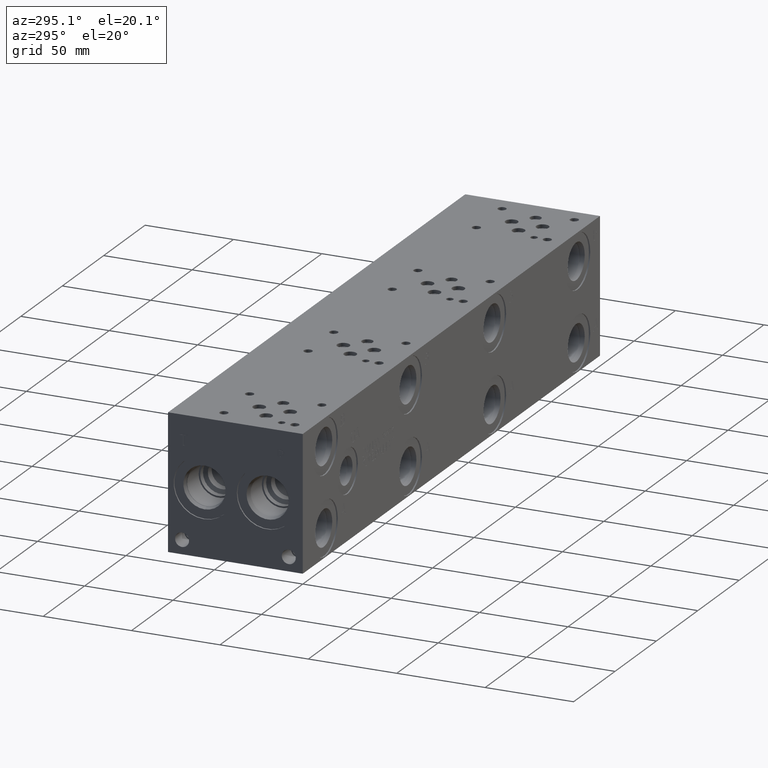
[diagram: clean part render]
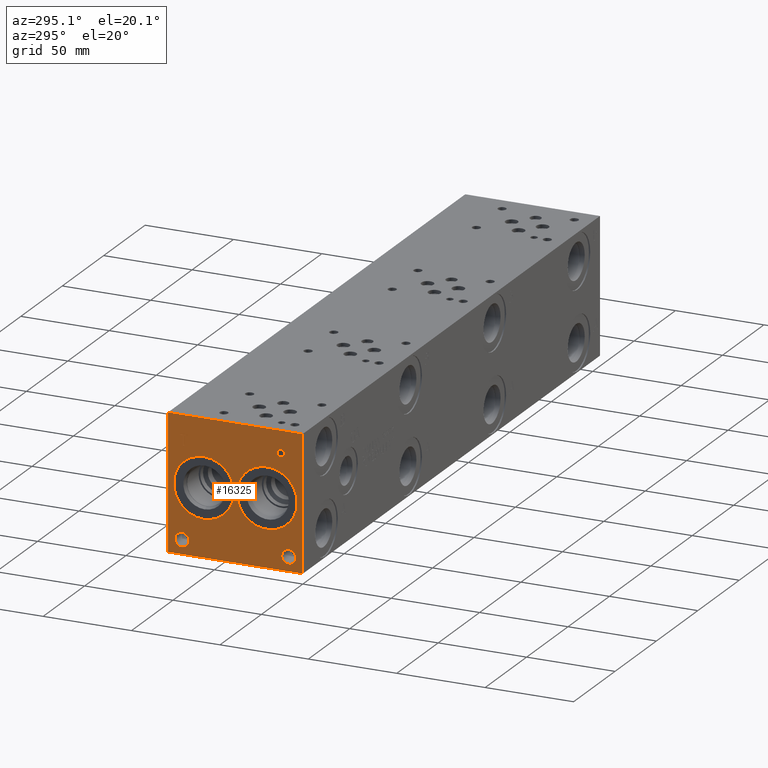
[diagram: same view with one face highlighted and labeled with its STEP entity id]
A machine part, auxiliary view. The second image highlights one B-rep face of the part: STEP entity #16325.
In plain terms, the highlighted planar face has unit normal (-1, 0, 0).
Its self-contained STEP definition (entity closure, byte-faithful):
#272=CIRCLE('',#17048,17.0688);
#273=CIRCLE('',#17049,17.0688);
#274=CIRCLE('',#17050,17.0688);
#275=CIRCLE('',#17051,17.0688);
#276=CIRCLE('',#17052,3.9624);
#277=CIRCLE('',#17053,3.9624);
#278=CIRCLE('',#17054,3.9624);
#279=CIRCLE('',#17055,3.9624);
#810=FACE_BOUND('',#2964,.T.);
#811=FACE_BOUND('',#2965,.T.);
#812=FACE_BOUND('',#2966,.T.);
#813=FACE_BOUND('',#2967,.T.);
#814=FACE_BOUND('',#2968,.T.);
#815=FACE_BOUND('',#2969,.T.);
#1264=B_SPLINE_CURVE_WITH_KNOTS('',2,(#27123,#27124,#27125,#27126),
 .UNSPECIFIED.,.F.,.F.,(3,1,3),(0.,1.,2.),.UNSPECIFIED.);
#1266=B_SPLINE_CURVE_WITH_KNOTS('',2,(#27144,#27145,#27146,#27147),
 .UNSPECIFIED.,.F.,.F.,(3,1,3),(0.,1.,2.),.UNSPECIFIED.);
#1268=B_SPLINE_CURVE_WITH_KNOTS('',2,(#27193,#27194,#27195,#27196),
 .UNSPECIFIED.,.F.,.F.,(3,1,3),(0.,1.,2.),.UNSPECIFIED.);
#1270=B_SPLINE_CURVE_WITH_KNOTS('',2,(#27211,#27212,#27213,#27214),
 .UNSPECIFIED.,.F.,.F.,(3,1,3),(0.,1.,2.),.UNSPECIFIED.);
#2027=FACE_OUTER_BOUND('',#2963,.T.);
#2963=EDGE_LOOP('',(#13230,#13231,#13232,#13233));
#2964=EDGE_LOOP('',(#13234,#13235));
#2965=EDGE_LOOP('',(#13236,#13237));
#2966=EDGE_LOOP('',(#13238,#13239));
#2967=EDGE_LOOP('',(#13240,#13241));
#2968=EDGE_LOOP('',(#13242,#13243,#13244,#13245,#13246,#13247,#13248,#13249));
#2969=EDGE_LOOP('',(#13250,#13251,#13252,#13253,#13254,#13255,#13256,#13257,
#13258));
#3686=LINE('',#23838,#5126);
#4515=LINE('',#27156,#5955);
#4518=LINE('',#27162,#5958);
#4521=LINE('',#27168,#5961);
#4524=LINE('',#27174,#5964);
#4527=LINE('',#27180,#5967);
#4531=LINE('',#27222,#5971);
#4532=LINE('',#27224,#5972);
#4533=LINE('',#27225,#5973);
#4534=LINE('',#27244,#5974);
#4535=LINE('',#27246,#5975);
#4536=LINE('',#27248,#5976);
#4537=LINE('',#27250,#5977);
#4538=LINE('',#27252,#5978);
#4539=LINE('',#27254,#5979);
#4540=LINE('',#27256,#5980);
#4541=LINE('',#27257,#5981);
#5126=VECTOR('',#18333,10.);
#5955=VECTOR('',#19790,10.);
#5958=VECTOR('',#19795,10.);
#5961=VECTOR('',#19800,10.);
#5964=VECTOR('',#19805,10.);
#5967=VECTOR('',#19810,10.);
#5971=VECTOR('',#19818,10.);
#5972=VECTOR('',#19819,10.);
#5973=VECTOR('',#19820,10.);
#5974=VECTOR('',#19837,10.);
#5975=VECTOR('',#19838,10.);
#5976=VECTOR('',#19839,10.);
#5977=VECTOR('',#19840,10.);
#5978=VECTOR('',#19841,10.);
#5979=VECTOR('',#19842,10.);
#5980=VECTOR('',#19843,10.);
#5981=VECTOR('',#19844,10.);
#6574=VERTEX_POINT('',#23831);
#6577=VERTEX_POINT('',#23836);
#7274=VERTEX_POINT('',#27121);
#7275=VERTEX_POINT('',#27122);
#7278=VERTEX_POINT('',#27143);
#7280=VERTEX_POINT('',#27155);
#7282=VERTEX_POINT('',#27161);
#7284=VERTEX_POINT('',#27167);
#7286=VERTEX_POINT('',#27173);
#7288=VERTEX_POINT('',#27179);
#7290=VERTEX_POINT('',#27192);
#7292=VERTEX_POINT('',#27221);
#7293=VERTEX_POINT('',#27223);
#7294=VERTEX_POINT('',#27226);
#7295=VERTEX_POINT('',#27227);
#7296=VERTEX_POINT('',#27230);
#7297=VERTEX_POINT('',#27231);
#7298=VERTEX_POINT('',#27234);
#7299=VERTEX_POINT('',#27235);
#7300=VERTEX_POINT('',#27238);
#7301=VERTEX_POINT('',#27239);
#7302=VERTEX_POINT('',#27242);
#7303=VERTEX_POINT('',#27243);
#7304=VERTEX_POINT('',#27245);
#7305=VERTEX_POINT('',#27247);
#7306=VERTEX_POINT('',#27249);
#7307=VERTEX_POINT('',#27251);
#7308=VERTEX_POINT('',#27253);
#7309=VERTEX_POINT('',#27255);
#8349=EDGE_CURVE('',#6574,#6577,#3686,.T.);
#9381=EDGE_CURVE('',#7274,#7275,#1264,.T.);
#9385=EDGE_CURVE('',#7278,#7274,#1266,.T.);
#9388=EDGE_CURVE('',#7280,#7278,#4515,.T.);
#9391=EDGE_CURVE('',#7282,#7280,#4518,.T.);
#9394=EDGE_CURVE('',#7284,#7282,#4521,.T.);
#9397=EDGE_CURVE('',#7286,#7284,#4524,.T.);
#9400=EDGE_CURVE('',#7288,#7286,#4527,.T.);
#9403=EDGE_CURVE('',#7290,#7288,#1268,.T.);
#9406=EDGE_CURVE('',#7275,#7290,#1270,.T.);
#9408=EDGE_CURVE('',#7292,#6574,#4531,.T.);
#9409=EDGE_CURVE('',#7293,#6577,#4532,.T.);
#9410=EDGE_CURVE('',#7292,#7293,#4533,.T.);
#9411=EDGE_CURVE('',#7294,#7295,#272,.T.);
#9412=EDGE_CURVE('',#7295,#7294,#273,.T.);
#9413=EDGE_CURVE('',#7296,#7297,#274,.T.);
#9414=EDGE_CURVE('',#7297,#7296,#275,.T.);
#9415=EDGE_CURVE('',#7298,#7299,#276,.T.);
#9416=EDGE_CURVE('',#7299,#7298,#277,.T.);
#9417=EDGE_CURVE('',#7300,#7301,#278,.T.);
#9418=EDGE_CURVE('',#7301,#7300,#279,.T.);
#9419=EDGE_CURVE('',#7302,#7303,#4534,.T.);
#9420=EDGE_CURVE('',#7303,#7304,#4535,.T.);
#9421=EDGE_CURVE('',#7304,#7305,#4536,.T.);
#9422=EDGE_CURVE('',#7305,#7306,#4537,.T.);
#9423=EDGE_CURVE('',#7306,#7307,#4538,.T.);
#9424=EDGE_CURVE('',#7307,#7308,#4539,.T.);
#9425=EDGE_CURVE('',#7308,#7309,#4540,.T.);
#9426=EDGE_CURVE('',#7309,#7302,#4541,.T.);
#13230=ORIENTED_EDGE('',*,*,#9408,.T.);
#13231=ORIENTED_EDGE('',*,*,#8349,.T.);
#13232=ORIENTED_EDGE('',*,*,#9409,.F.);
#13233=ORIENTED_EDGE('',*,*,#9410,.F.);
#13234=ORIENTED_EDGE('',*,*,#9411,.T.);
#13235=ORIENTED_EDGE('',*,*,#9412,.T.);
#13236=ORIENTED_EDGE('',*,*,#9413,.T.);
#13237=ORIENTED_EDGE('',*,*,#9414,.T.);
#13238=ORIENTED_EDGE('',*,*,#9415,.T.);
#13239=ORIENTED_EDGE('',*,*,#9416,.T.);
#13240=ORIENTED_EDGE('',*,*,#9417,.T.);
#13241=ORIENTED_EDGE('',*,*,#9418,.T.);
#13242=ORIENTED_EDGE('',*,*,#9419,.T.);
#13243=ORIENTED_EDGE('',*,*,#9420,.T.);
#13244=ORIENTED_EDGE('',*,*,#9421,.T.);
#13245=ORIENTED_EDGE('',*,*,#9422,.T.);
#13246=ORIENTED_EDGE('',*,*,#9423,.T.);
#13247=ORIENTED_EDGE('',*,*,#9424,.T.);
#13248=ORIENTED_EDGE('',*,*,#9425,.T.);
#13249=ORIENTED_EDGE('',*,*,#9426,.T.);
#13250=ORIENTED_EDGE('',*,*,#9381,.T.);
#13251=ORIENTED_EDGE('',*,*,#9406,.T.);
#13252=ORIENTED_EDGE('',*,*,#9403,.T.);
#13253=ORIENTED_EDGE('',*,*,#9400,.T.);
#13254=ORIENTED_EDGE('',*,*,#9397,.T.);
#13255=ORIENTED_EDGE('',*,*,#9394,.T.);
#13256=ORIENTED_EDGE('',*,*,#9391,.T.);
#13257=ORIENTED_EDGE('',*,*,#9388,.T.);
#13258=ORIENTED_EDGE('',*,*,#9385,.T.);
#15133=PLANE('',#17047);
#16325=ADVANCED_FACE('',(#2027,#810,#811,#812,#813,#814,#815),#15133,.T.);
#17047=AXIS2_PLACEMENT_3D('',#27220,#19816,#19817);
#17048=AXIS2_PLACEMENT_3D('',#27228,#19821,#19822);
#17049=AXIS2_PLACEMENT_3D('',#27229,#19823,#19824);
#17050=AXIS2_PLACEMENT_3D('',#27232,#19825,#19826);
#17051=AXIS2_PLACEMENT_3D('',#27233,#19827,#19828);
#17052=AXIS2_PLACEMENT_3D('',#27236,#19829,#19830);
#17053=AXIS2_PLACEMENT_3D('',#27237,#19831,#19832);
#17054=AXIS2_PLACEMENT_3D('',#27240,#19833,#19834);
#17055=AXIS2_PLACEMENT_3D('',#27241,#19835,#19836);
#18333=DIRECTION('',(0.,0.,1.));
#19790=DIRECTION('',(0.,-1.,-1.11355060845355E-14));
#19795=DIRECTION('',(0.,-3.14708893596576E-15,1.));
#19800=DIRECTION('',(0.,1.,1.0524411238433E-14));
#19805=DIRECTION('',(0.,3.75218139804999E-15,-1.));
#19810=DIRECTION('',(0.,1.,1.24172909575755E-14));
#19816=DIRECTION('center_axis',(-1.,0.,0.));
#19817=DIRECTION('ref_axis',(0.,-1.,0.));
#19818=DIRECTION('',(0.,-1.,0.));
#19819=DIRECTION('',(0.,-1.,0.));
#19820=DIRECTION('',(0.,0.,1.));
#19821=DIRECTION('center_axis',(1.,0.,0.));
#19822=DIRECTION('ref_axis',(0.,0.,1.));
#19823=DIRECTION('center_axis',(1.,0.,0.));
#19824=DIRECTION('ref_axis',(0.,0.,1.));
#19825=DIRECTION('center_axis',(1.,0.,0.));
#19826=DIRECTION('ref_axis',(0.,1.,0.));
#19827=DIRECTION('center_axis',(1.,0.,0.));
#19828=DIRECTION('ref_axis',(0.,1.,0.));
#19829=DIRECTION('center_axis',(1.,0.,0.));
#19830=DIRECTION('ref_axis',(0.,1.,0.));
#19831=DIRECTION('center_axis',(1.,0.,0.));
#19832=DIRECTION('ref_axis',(0.,1.,0.));
#19833=DIRECTION('center_axis',(1.,0.,0.));
#19834=DIRECTION('ref_axis',(0.,1.,0.));
#19835=DIRECTION('center_axis',(1.,0.,0.));
#19836=DIRECTION('ref_axis',(0.,1.,0.));
#19837=DIRECTION('',(0.,1.,0.));
#19838=DIRECTION('',(0.,-3.17280044688052E-15,1.));
#19839=DIRECTION('',(0.,1.,0.));
#19840=DIRECTION('',(0.,0.,1.));
#19841=DIRECTION('',(0.,-1.,-3.47984565141734E-15));
#19842=DIRECTION('',(0.,0.,-1.));
#19843=DIRECTION('',(0.,1.,8.33818088455555E-15));
#19844=DIRECTION('',(0.,3.17280044688052E-15,-1.));
#23831=CARTESIAN_POINT('',(0.,0.,0.));
#23836=CARTESIAN_POINT('',(0.,0.,76.2));
#23838=CARTESIAN_POINT('',(0.,0.,0.));
#27121=CARTESIAN_POINT('',(0.,11.1806827976406,65.4850181439707));
#27122=CARTESIAN_POINT('',(0.,10.424240345468,63.966987372604));
#27123=CARTESIAN_POINT('Ctrl Pts',(0.,11.1806827976406,65.4850181439707));
#27124=CARTESIAN_POINT('Ctrl Pts',(0.,10.8256179731514,65.2431623939564));
#27125=CARTESIAN_POINT('Ctrl Pts',(0.,10.424240345468,64.4970116758269));
#27126=CARTESIAN_POINT('Ctrl Pts',(0.,10.424240345468,63.966987372604));
#27143=CARTESIAN_POINT('',(0.,12.8427978456117,65.8812499046326));
#27144=CARTESIAN_POINT('Ctrl Pts',(0.,12.8427978456117,65.8812499046326));
#27145=CARTESIAN_POINT('Ctrl Pts',(0.,12.2767524732376,65.8812499046326));
#27146=CARTESIAN_POINT('Ctrl Pts',(0.,11.4842889519139,65.6959986918556));
#27147=CARTESIAN_POINT('Ctrl Pts',(0.,11.1806827976406,65.4850181439707));
#27155=CARTESIAN_POINT('',(0.,14.4380166223022,65.8812499046326));
#27156=CARTESIAN_POINT('',(0.,45.3190083111507,65.8812499046329));
#27161=CARTESIAN_POINT('',(0.,14.4380166223022,59.53125));
#27162=CARTESIAN_POINT('',(0.,14.4380166223023,29.7656249999999));
#27167=CARTESIAN_POINT('',(0.,13.5940944307627,59.53125));
#27168=CARTESIAN_POINT('',(0.,44.897047215381,59.5312500000003));
#27173=CARTESIAN_POINT('',(0.,13.5940944307627,61.8983488299279));
#27174=CARTESIAN_POINT('',(0.,13.5940944307628,30.9491744149638));
#27179=CARTESIAN_POINT('',(0.,12.8788189147628,61.8983488299279));
#27180=CARTESIAN_POINT('',(0.,44.539409457381,61.8983488299283));
#27192=CARTESIAN_POINT('',(0.,10.9799939837989,62.5570198086904));
#27193=CARTESIAN_POINT('Ctrl Pts',(0.,10.9799939837989,62.5570198086904));
#27194=CARTESIAN_POINT('Ctrl Pts',(0.,11.3093294731802,62.2328301863307));
#27195=CARTESIAN_POINT('Ctrl Pts',(0.,12.1995644679139,61.8983488299279));
#27196=CARTESIAN_POINT('Ctrl Pts',(0.,12.8788189147628,61.8983488299279));
#27211=CARTESIAN_POINT('Ctrl Pts',(0.,10.424240345468,63.966987372604));
#27212=CARTESIAN_POINT('Ctrl Pts',(0.,10.424240345468,63.5553180108774));
#27213=CARTESIAN_POINT('Ctrl Pts',(0.,10.7175547656982,62.8143131597695));
#27214=CARTESIAN_POINT('Ctrl Pts',(0.,10.9799939837989,62.5570198086904));
#27220=CARTESIAN_POINT('Origin',(0.,76.2,0.));
#27221=CARTESIAN_POINT('',(0.,76.2,0.));
#27222=CARTESIAN_POINT('',(0.,76.2,0.));
#27223=CARTESIAN_POINT('',(0.,76.2,76.2));
#27224=CARTESIAN_POINT('',(0.,76.2,76.2));
#27225=CARTESIAN_POINT('',(0.,76.2,0.));
#27226=CARTESIAN_POINT('',(0.,55.9562,55.1688));
#27227=CARTESIAN_POINT('',(0.,55.9562,21.0312));
#27228=CARTESIAN_POINT('Origin',(0.,55.9562,38.1));
#27229=CARTESIAN_POINT('Origin',(0.,55.9562,38.1));
#27230=CARTESIAN_POINT('',(0.,37.3126,38.1));
#27231=CARTESIAN_POINT('',(0.,3.175,38.1));
#27232=CARTESIAN_POINT('Origin',(0.,20.2438,38.1));
#27233=CARTESIAN_POINT('Origin',(0.,20.2438,38.1));
#27234=CARTESIAN_POINT('',(0.,11.8872,7.92480000000001));
#27235=CARTESIAN_POINT('',(0.,3.9624,7.92480000000001));
#27236=CARTESIAN_POINT('Origin',(0.,7.9248,7.92480000000001));
#27237=CARTESIAN_POINT('Origin',(0.,7.9248,7.92480000000001));
#27238=CARTESIAN_POINT('',(0.,72.2376,7.92480000000001));
#27239=CARTESIAN_POINT('',(0.,64.3128,7.92480000000001));
#27240=CARTESIAN_POINT('Origin',(0.,68.2752,7.92480000000001));
#27241=CARTESIAN_POINT('Origin',(0.,68.2752,7.92480000000001));
#27242=CARTESIAN_POINT('',(0.,66.880834728547,59.53125));
#27243=CARTESIAN_POINT('',(0.,67.7247569200865,59.53125));
#27244=CARTESIAN_POINT('',(0.,71.5404173642735,59.53125));
#27245=CARTESIAN_POINT('',(0.,67.7247569200865,65.1299533194816));
#27246=CARTESIAN_POINT('',(0.,67.7247569200866,29.765625));
#27247=CARTESIAN_POINT('',(0.,69.8551458670215,65.1299533194816));
#27248=CARTESIAN_POINT('',(0.,71.9623784600432,65.1299533194816));
#27249=CARTESIAN_POINT('',(0.,69.8551458670215,65.8812499046326));
#27250=CARTESIAN_POINT('',(0.,69.8551458670215,32.5649766597408));
#27251=CARTESIAN_POINT('',(0.,64.7504457816119,65.8812499046326));
#27252=CARTESIAN_POINT('',(0.,73.0275729335107,65.8812499046326));
#27253=CARTESIAN_POINT('',(0.,64.7504457816119,65.1299533194815));
#27254=CARTESIAN_POINT('',(0.,64.7504457816119,32.9406249523163));
#27255=CARTESIAN_POINT('',(0.,66.880834728547,65.1299533194816));
#27256=CARTESIAN_POINT('',(0.,70.4752228908057,65.1299533194816));
#27257=CARTESIAN_POINT('',(0.,66.8808347285471,32.5649766597408));